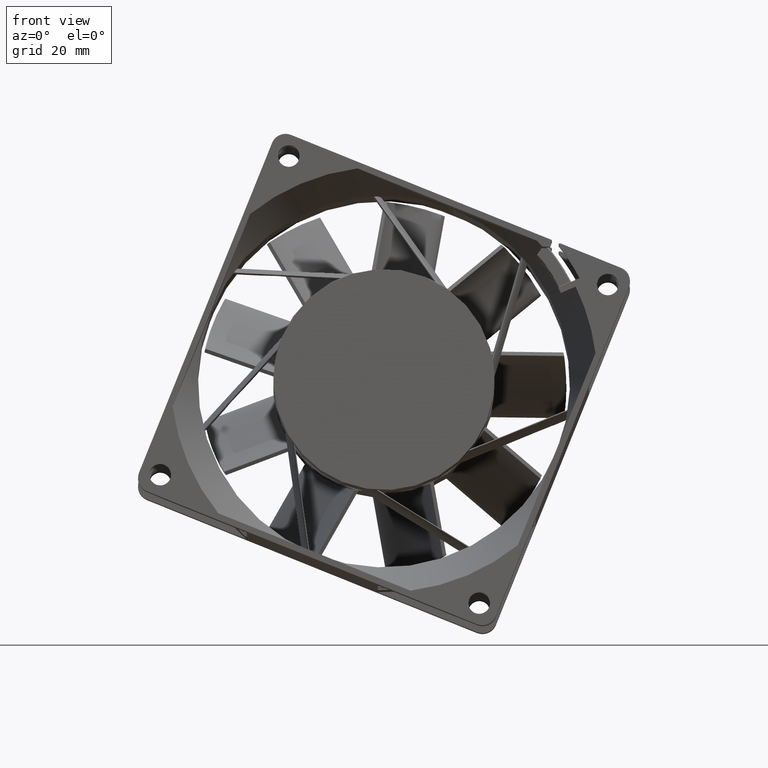
[diagram: clean part render]
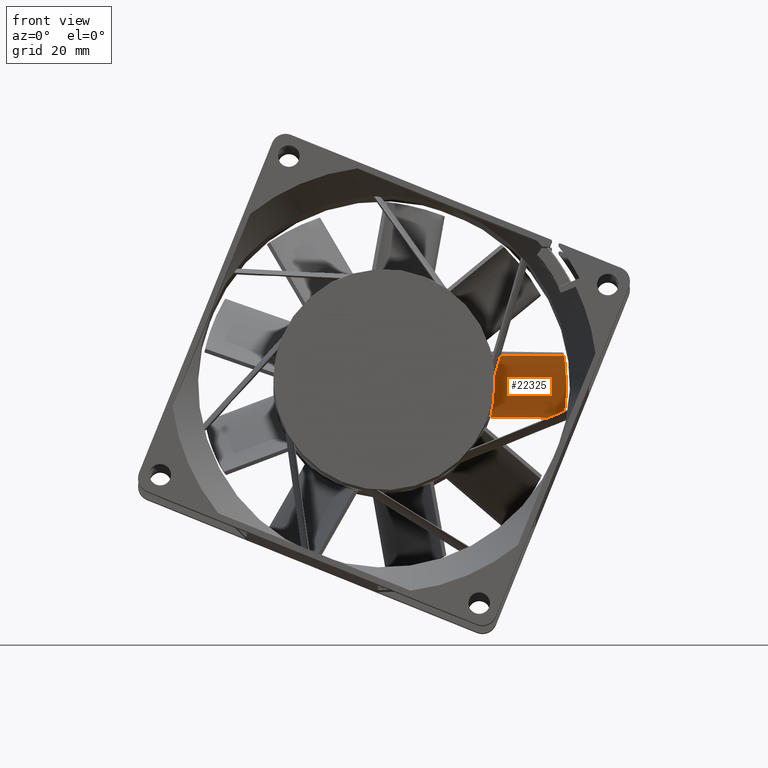
[diagram: same view with one face highlighted and labeled with its STEP entity id]
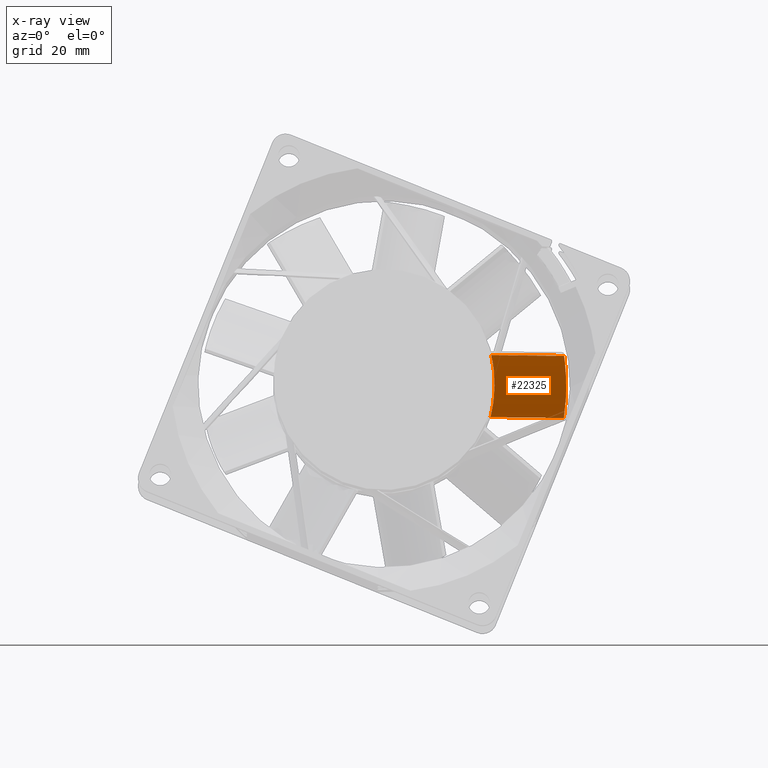
[diagram: x-ray of the same camera — body ghosted, the highlighted face saturated]
A machine part, front view. The second image highlights one B-rep face of the part: STEP entity #22325.
The next image is the same camera in x-ray: the body ghosted, the highlighted face saturated — about 2% of this face is hidden behind the body in this view.
In plain terms, the highlighted face is a SurfaceOfExtrusion surface.
Its self-contained STEP definition (entity closure, byte-faithful):
#18864=CARTESIAN_POINT('',(5.819103173855E0,2.225425560649E1,
-2.300223420566E1));
#18899=CARTESIAN_POINT('',(5.817910884006E0,3.745073965208E1,
-1.892785942150E1));
#18901=DIRECTION('',(7.578176497515E-5,-9.658862596348E-1,-2.589666536561E-1));
#18902=VECTOR('',#18901,1.573320242834E1);
#18903=CARTESIAN_POINT('',(5.817910884006E0,3.745073965208E1,
-1.892785942150E1));
#18904=LINE('',#18903,#18902);
#18955=CARTESIAN_POINT('',(-6.236753099599E0,3.738332396637E1,
-8.879601560078E-1));
#19265=CARTESIAN_POINT('',(5.819103173855E0,2.225425560649E1,
-2.300223420566E1));
#19266=CARTESIAN_POINT('',(5.767906061750E0,2.226764141195E1,
-2.278175478896E1));
#19267=CARTESIAN_POINT('',(5.636262840764E0,2.229795513443E1,
-2.231932221078E1));
#19268=CARTESIAN_POINT('',(5.374393441910E0,2.236422732905E1,
-2.157652780460E1));
#19269=CARTESIAN_POINT('',(5.070222898025E0,2.243492111932E1,
-2.075594441310E1));
#19270=CARTESIAN_POINT('',(4.704594620831E0,2.251509765127E1,
-1.985383937026E1));
#19271=CARTESIAN_POINT('',(4.229213098502E0,2.260978998858E1,
-1.888030694662E1));
#19272=CARTESIAN_POINT('',(3.684793834525E0,2.270558971140E1,
-1.781055684382E1));
#19273=CARTESIAN_POINT('',(3.014754322327E0,2.280566322414E1,
-1.664682933904E1));
#19274=CARTESIAN_POINT('',(2.192403586876E0,2.290118478925E1,
-1.537350088017E1));
#19275=CARTESIAN_POINT('',(1.207026357694E0,2.297672822155E1,
-1.398360550530E1));
#19276=CARTESIAN_POINT('',(4.235247581533E-1,2.299996697374E1,
-1.299993967528E1));
#19277=CARTESIAN_POINT('',(1.712476473303E-4,2.299996823358E1,
-1.249362324144E1));
#19279=CARTESIAN_POINT('',(1.712476473303E-4,2.299996823358E1,
-1.249362324144E1));
#19280=CARTESIAN_POINT('',(-2.458101036202E-1,2.299996896558E1,
-1.219943789166E1));
#19281=CARTESIAN_POINT('',(-7.311560009078E-1,2.299187105683E1,
-1.165199196602E1));
#19282=CARTESIAN_POINT('',(-1.388700932078E0,2.296097464850E1,
-1.091940313092E1));
#19283=CARTESIAN_POINT('',(-2.007944414952E0,2.291476992722E1,
-1.027915094920E1));
#19284=CARTESIAN_POINT('',(-2.573122451333E0,2.285777488798E1,
-9.698780946615E0));
#19285=CARTESIAN_POINT('',(-3.095703919645E0,2.279259678900E1,
-9.182450674505E0));
#19286=CARTESIAN_POINT('',(-3.574568921657E0,2.272204932115E1,
-8.724058138753E0));
#19287=CARTESIAN_POINT('',(-3.996214549965E0,2.265137232142E1,
-8.300241174553E0));
#19288=CARTESIAN_POINT('',(-4.375362733831E0,2.258098148880E1,
-7.911403343022E0));
#19289=CARTESIAN_POINT('',(-4.714728554493E0,2.251237791093E1,
-7.551347308974E0));
#19290=CARTESIAN_POINT('',(-5.017716605858E0,2.244661395826E1,
-7.215395946204E0));
#19291=CARTESIAN_POINT('',(-5.280333601197E0,2.238613178178E1,
-6.897599611648E0));
#19292=CARTESIAN_POINT('',(-5.509846731596E0,2.233066381503E1,
-6.601705813841E0));
#19293=CARTESIAN_POINT('',(-5.719248464693E0,2.227787844362E1,
-6.331362907354E0));
#19294=CARTESIAN_POINT('',(-5.899075202827E0,2.223084129698E1,
-6.077821500400E0));
#19295=CARTESIAN_POINT('',(-6.043807072988E0,2.219184434003E1,
-5.838405871985E0));
#19296=CARTESIAN_POINT('',(-6.149035705868E0,2.216284808973E1,
-5.607326718172E0));
#19297=CARTESIAN_POINT('',(-6.213850583404E0,2.214472286954E1,
-5.386423964732E0));
#19298=CARTESIAN_POINT('',(-6.243331439193E0,2.213641389935E1,
-5.175082017145E0));
#19299=CARTESIAN_POINT('',(-6.242207245565E0,2.213673148439E1,
-5.039369962657E0));
#19300=CARTESIAN_POINT('',(-6.236753099599E0,2.213826801660E1,
-4.972860586316E0));
#19480=DIRECTION('',(-2.476096970570E-14,9.659258262891E-1,2.588190451025E-1));
#19481=VECTOR('',#19480,1.578284329382E1);
#19482=CARTESIAN_POINT('',(-6.236753099599E0,2.213826801660E1,
-4.972860586316E0));
#19483=LINE('',#19482,#19481);
#19484=CARTESIAN_POINT('',(5.817910884006E0,3.745073965208E1,
-1.892785942150E1));
#19485=CARTESIAN_POINT('',(5.763783555095E0,3.745914833492E1,
-1.869668922527E1));
#19486=CARTESIAN_POINT('',(5.625142939338E0,3.748054671727E1,
-1.821373758496E1));
#19487=CARTESIAN_POINT('',(5.339385368612E0,3.752241626677E1,
-1.742326300783E1));
#19488=CARTESIAN_POINT('',(5.016034540946E0,3.756717290609E1,
-1.655641501346E1));
#19489=CARTESIAN_POINT('',(4.604680953376E0,3.762022204493E1,
-1.559687707366E1));
#19490=CARTESIAN_POINT('',(4.083897661487E0,3.768072212774E1,
-1.455363486480E1));
#19491=CARTESIAN_POINT('',(3.478177464972E0,3.774204894223E1,
-1.341607384009E1));
#19492=CARTESIAN_POINT('',(2.721449325617E0,3.780532057216E1,
-1.216817814348E1));
#19493=CARTESIAN_POINT('',(1.816317223593E0,3.786029661926E1,
-1.081986785438E1));
#19494=CARTESIAN_POINT('',(9.040349381101E-1,3.789255056892E1,
-9.607385653924E0));
#19495=CARTESIAN_POINT('',(7.877326878853E-2,3.790270664525E1,
-8.582548562025E0));
#19496=CARTESIAN_POINT('',(-6.963623035098E-1,3.789602196099E1,
-7.694717277390E0));
#19497=CARTESIAN_POINT('',(-1.403024138487E0,3.787606607781E1,
-6.906816419806E0));
#19498=CARTESIAN_POINT('',(-2.059902886950E0,3.784568293671E1,
-6.224785017050E0));
#19499=CARTESIAN_POINT('',(-2.645232287999E0,3.780896364898E1,
-5.615237532621E0));
#19500=CARTESIAN_POINT('',(-3.187135596586E0,3.776694811478E1,
-5.080895425650E0));
#19501=CARTESIAN_POINT('',(-3.677242277972E0,3.772213248672E1,
-4.598634589269E0));
#19502=CARTESIAN_POINT('',(-4.111886178855E0,3.767703912735E1,
-4.151142110701E0));
#19503=CARTESIAN_POINT('',(-4.502197412912E0,3.763225022491E1,
-3.739060043677E0));
#19504=CARTESIAN_POINT('',(-4.850685520635E0,3.758879088566E1,
-3.356086072446E0));
#19505=CARTESIAN_POINT('',(-5.156513941686E0,3.754793140947E1,
-2.997535010716E0));
#19506=CARTESIAN_POINT('',(-5.416435882322E0,3.751123122669E1,
-2.660653246975E0));
#19507=CARTESIAN_POINT('',(-5.649432951923E0,3.747679806010E1,
-2.355514522024E0));
#19508=CARTESIAN_POINT('',(-5.853746868182E0,3.744536722291E1,
-2.072251035809E0));
#19509=CARTESIAN_POINT('',(-6.020475674203E0,3.741885708570E1,
-1.804407764228E0));
#19510=CARTESIAN_POINT('',(-6.139924802378E0,3.739938823537E1,
-1.551167043703E0));
#19511=CARTESIAN_POINT('',(-6.210931215495E0,3.738763296669E1,
-1.317455059972E0));
#19512=CARTESIAN_POINT('',(-6.243253455618E0,3.738223917089E1,
-1.096837306811E0));
#19513=CARTESIAN_POINT('',(-6.242380008069E0,3.738238521521E1,
-9.564030303594E-1));
#19514=CARTESIAN_POINT('',(-6.236753099599E0,3.738332396637E1,
-8.879601560078E-1));
#21390=VERTEX_POINT('',#18864);
#21397=VERTEX_POINT('',#18899);
#21404=VERTEX_POINT('',#18955);
#21481=VERTEX_POINT('',#19277);
#21482=VERTEX_POINT('',#19300);
#22268=CARTESIAN_POINT('',(5.865819324910E0,2.229285370091E1,
-2.320916521432E1));
#22269=CARTESIAN_POINT('',(5.851341092956E0,2.227467780703E1,
-2.314133185647E1));
#22270=CARTESIAN_POINT('',(5.835299835197E0,2.225633742472E1,
-2.307288461790E1));
#22271=CARTESIAN_POINT('',(5.721825220210E0,2.213627923840E1,
-2.262482136665E1));
#22272=CARTESIAN_POINT('',(5.519433680284E0,2.198640719269E1,
-2.206549127744E1));
#22273=CARTESIAN_POINT('',(5.221405897323E0,2.178919376324E1,
-2.132948073879E1));
#22274=CARTESIAN_POINT('',(4.987936379339E0,2.163845188496E1,
-2.076690439023E1));
#22275=CARTESIAN_POINT('',(4.731049679475E0,2.148723690418E1,
-2.020256239909E1));
#22276=CARTESIAN_POINT('',(4.442419351433E0,2.133819389948E1,
-1.964632633305E1));
#22277=CARTESIAN_POINT('',(4.140603148085E0,2.118970186362E1,
-1.909214651068E1));
#22278=CARTESIAN_POINT('',(3.830666499262E0,2.104043791680E1,
-1.853508587743E1));
#22279=CARTESIAN_POINT('',(3.496976973177E0,2.089267516080E1,
-1.798362776456E1));
#22280=CARTESIAN_POINT('',(3.146525652722E0,2.074477042917E1,
-1.743163979143E1));
#22281=CARTESIAN_POINT('',(2.782609106467E0,2.059854472405E1,
-1.688591803057E1));
#22282=CARTESIAN_POINT('',(2.396513375101E0,2.045493740954E1,
-1.634996823648E1));
#22283=CARTESIAN_POINT('',(2.006605555234E0,2.031061716044E1,
-1.581135773426E1));
#22284=CARTESIAN_POINT('',(1.600202115730E0,2.016796715676E1,
-1.527898067282E1));
#22285=CARTESIAN_POINT('',(1.173089380779E0,2.002704867774E1,
-1.475306574938E1));
#22286=CARTESIAN_POINT('',(7.405463393881E-1,1.988710150446E1,
-1.423077578833E1));
#22287=CARTESIAN_POINT('',(2.907986872528E-1,1.974865372628E1,
-1.371408164597E1));
#22288=CARTESIAN_POINT('',(-1.686188099250E-1,1.961002641155E1,
-1.319671746408E1));
#22289=CARTESIAN_POINT('',(-5.634408152863E-1,1.949695119847E1,
-1.277471502380E1));
#22290=CARTESIAN_POINT('',(-8.849500681018E-1,1.940797954652E1,
-1.244266829830E1));
#22291=CARTESIAN_POINT('',(-1.123693788181E0,1.934080521838E1,
-1.219197029270E1));
#22292=CARTESIAN_POINT('',(-1.367036989976E0,1.927265723196E1,
-1.193763854494E1));
#22293=CARTESIAN_POINT('',(-1.698898461813E0,1.918284832807E1,
-1.160246715268E1));
#22294=CARTESIAN_POINT('',(-2.034267695644E0,1.909511542191E1,
-1.127504348939E1));
#22295=CARTESIAN_POINT('',(-2.369119029356E0,1.900760523379E1,
-1.094845102115E1));
#22296=CARTESIAN_POINT('',(-2.621683733097E0,1.894085483361E1,
-1.069933513623E1));
#22297=CARTESIAN_POINT('',(-2.878706209342E0,1.887434433545E1,
-1.045111457786E1));
#22298=CARTESIAN_POINT('',(-3.137769465797E0,1.880970509044E1,
-1.020987763133E1));
#22299=CARTESIAN_POINT('',(-3.391454055019E0,1.874622306597E1,
-9.972959490622E0));
#22300=CARTESIAN_POINT('',(-3.722942306641E0,1.866146922995E1,
-9.656653868471E0));
#22301=CARTESIAN_POINT('',(-4.129930408045E0,1.855433150363E1,
-9.256810430424E0));
#22302=CARTESIAN_POINT('',(-4.527715423002E0,1.844582050173E1,
-8.851841858165E0));
#22303=CARTESIAN_POINT('',(-4.834732448755E0,1.835829596232E1,
-8.525195830200E0));
#22304=CARTESIAN_POINT('',(-5.056269811370E0,1.829244713637E1,
-8.279444666112E0));
#22305=CARTESIAN_POINT('',(-5.269187848277E0,1.822469273052E1,
-8.026581781049E0));
#22306=CARTESIAN_POINT('',(-5.474269368930E0,1.815551572732E1,
-7.768409690388E0));
#22307=CARTESIAN_POINT('',(-5.676146867309E0,1.808731699384E1,
-7.513888552025E0));
#22308=CARTESIAN_POINT('',(-5.921441192076E0,1.799887338767E1,
-7.183812520210E0));
#22309=CARTESIAN_POINT('',(-6.131135608841E0,1.790590175441E1,
-6.836837661219E0));
#22310=CARTESIAN_POINT('',(-6.237111596234E0,1.780340586187E1,
-6.454317782669E0));
#22311=CARTESIAN_POINT('',(-6.248478880979E0,1.773132043990E1,
-6.185291325410E0));
#22312=CARTESIAN_POINT('',(-6.218322521968E0,1.768673424225E1,
-6.018893370480E0));
#22313=CARTESIAN_POINT('',(-6.199174153539E0,1.766895835270E1,
-5.952552847560E0));
#22315=DIRECTION('',(0.E0,9.659258262891E-1,2.588190451025E-1));
#22316=VECTOR('',#22315,1.E0);
#22317=SURFACE_OF_LINEAR_EXTRUSION('',#22314,#22316);
#22318=ORIENTED_EDGE('',*,*,#21702,.T.);
#22319=ORIENTED_EDGE('',*,*,#22263,.F.);
#22320=ORIENTED_EDGE('',*,*,#22040,.F.);
#22321=ORIENTED_EDGE('',*,*,#22038,.F.);
#22322=ORIENTED_EDGE('',*,*,#21677,.F.);
#22323=EDGE_LOOP('',(#22318,#22319,#22320,#22321,#22322));
#22324=FACE_OUTER_BOUND('',#22323,.F.);
#19278=B_SPLINE_CURVE_WITH_KNOTS('',3,(#19265,#19266,#19267,#19268,#19269,
#19270,#19271,#19272,#19273,#19274,#19275,#19276,#19277),.UNSPECIFIED.,.F.,.F.,(
4,1,1,1,1,1,1,1,1,1,4),(0.E0,1.E-1,2.E-1,3.E-1,4.E-1,5.E-1,6.E-1,7.E-1,8.E-1,
9.E-1,1.E0),.UNSPECIFIED.);
#19301=B_SPLINE_CURVE_WITH_KNOTS('',3,(#19279,#19280,#19281,#19282,#19283,
#19284,#19285,#19286,#19287,#19288,#19289,#19290,#19291,#19292,#19293,#19294,
#19295,#19296,#19297,#19298,#19299,#19300),.UNSPECIFIED.,.F.,.F.,(4,1,1,1,1,1,1,
1,1,1,1,1,1,1,1,1,1,1,1,4),(0.E0,5.263157894737E-2,1.052631578947E-1,
1.578947368421E-1,2.105263157895E-1,2.631578947368E-1,3.157894736842E-1,
3.684210526316E-1,4.210526315789E-1,4.736842105263E-1,5.263157894737E-1,
5.789473684211E-1,6.315789473684E-1,6.842105263158E-1,7.368421052632E-1,
7.894736842105E-1,8.421052631579E-1,8.947368421053E-1,9.473684210526E-1,1.E0),
.UNSPECIFIED.);
#19515=B_SPLINE_CURVE_WITH_KNOTS('',3,(#19484,#19485,#19486,#19487,#19488,
#19489,#19490,#19491,#19492,#19493,#19494,#19495,#19496,#19497,#19498,#19499,
#19500,#19501,#19502,#19503,#19504,#19505,#19506,#19507,#19508,#19509,#19510,
#19511,#19512,#19513,#19514),.UNSPECIFIED.,.F.,.F.,(4,1,1,1,1,1,1,1,1,1,1,1,1,1,
1,1,1,1,1,1,1,1,1,1,1,1,1,1,4),(0.E0,3.571428571429E-2,7.142857142857E-2,
1.071428571429E-1,1.428571428571E-1,1.785714285714E-1,2.142857142857E-1,2.5E-1,
2.857142857143E-1,3.214285714286E-1,3.571428571429E-1,3.928571428571E-1,
4.285714285714E-1,4.642857142857E-1,5.E-1,5.357142857143E-1,5.714285714286E-1,
6.071428571429E-1,6.428571428571E-1,6.785714285714E-1,7.142857142857E-1,7.5E-1,
7.857142857143E-1,8.214285714286E-1,8.571428571429E-1,8.928571428571E-1,
9.285714285714E-1,9.642857142857E-1,1.E0),.UNSPECIFIED.);
#21677=EDGE_CURVE('',#21397,#21390,#18904,.T.);
#21702=EDGE_CURVE('',#21397,#21404,#19515,.T.);
#22038=EDGE_CURVE('',#21390,#21481,#19278,.T.);
#22040=EDGE_CURVE('',#21481,#21482,#19301,.T.);
#22263=EDGE_CURVE('',#21482,#21404,#19483,.T.);
#22314=B_SPLINE_CURVE_WITH_KNOTS('',3,(#22268,#22269,#22270,#22271,#22272,
#22273,#22274,#22275,#22276,#22277,#22278,#22279,#22280,#22281,#22282,#22283,
#22284,#22285,#22286,#22287,#22288,#22289,#22290,#22291,#22292,#22293,#22294,
#22295,#22296,#22297,#22298,#22299,#22300,#22301,#22302,#22303,#22304,#22305,
#22306,#22307,#22308,#22309,#22310,#22311,#22312,#22313),.UNSPECIFIED.,.F.,.F.,(
4,1,1,1,1,1,1,1,1,1,1,1,1,1,1,1,1,1,1,1,1,1,1,1,1,1,1,1,1,1,1,1,1,1,1,1,1,1,1,1,
1,1,1,4),(0.E0,9.802141505853E-3,9.938389025232E-3,6.534797858779E-2,
9.346054446874E-2,1.219505291738E-1,1.511985116931E-1,1.807672906752E-1,
2.100717854651E-1,2.399128736310E-1,2.703491267816E-1,3.005459197819E-1,
3.316435989693E-1,3.622935490630E-1,3.930384414551E-1,4.247516325409E-1,
4.559845115884E-1,4.877279787188E-1,5.195003112727E-1,5.516126971354E-1,
5.842865768619E-1,6.000699428658E-1,6.160209834249E-1,6.325433158600E-1,
6.491308375583E-1,6.817213833398E-1,6.977928966667E-1,7.142487342587E-1,
7.311177406628E-1,7.475257342799E-1,7.634891915753E-1,7.794046068400E-1,
8.112866764945E-1,8.429233513486E-1,8.584818944829E-1,8.737858906423E-1,
8.890818398982E-1,9.046467112429E-1,9.198908437916E-1,9.344847402228E-1,
9.622825976141E-1,9.761062685448E-1,9.902179275714E-1,1.E0),.UNSPECIFIED.);
#22325=ADVANCED_FACE('',(#22324),#22317,.T.);